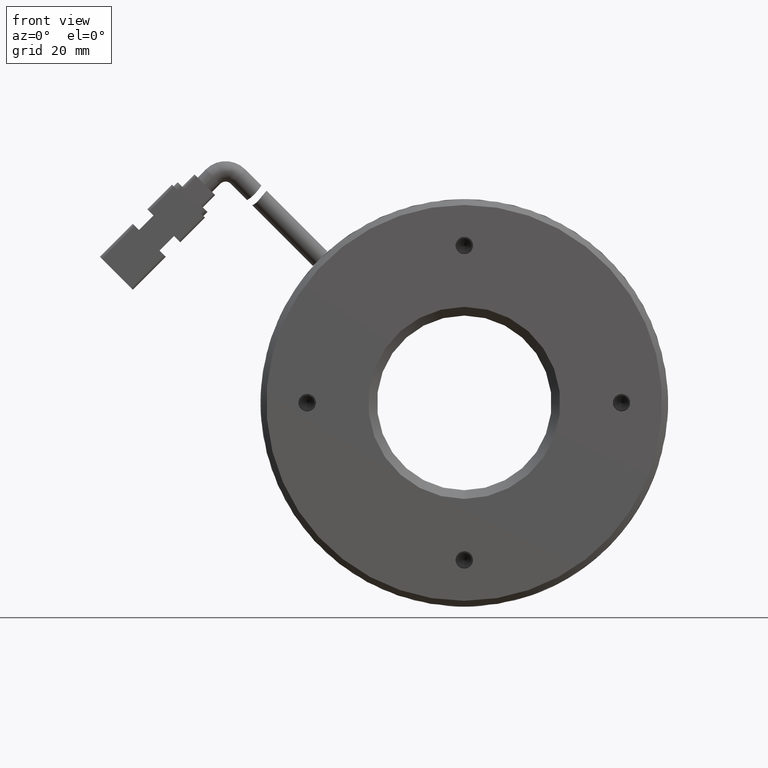
[diagram: clean part render]
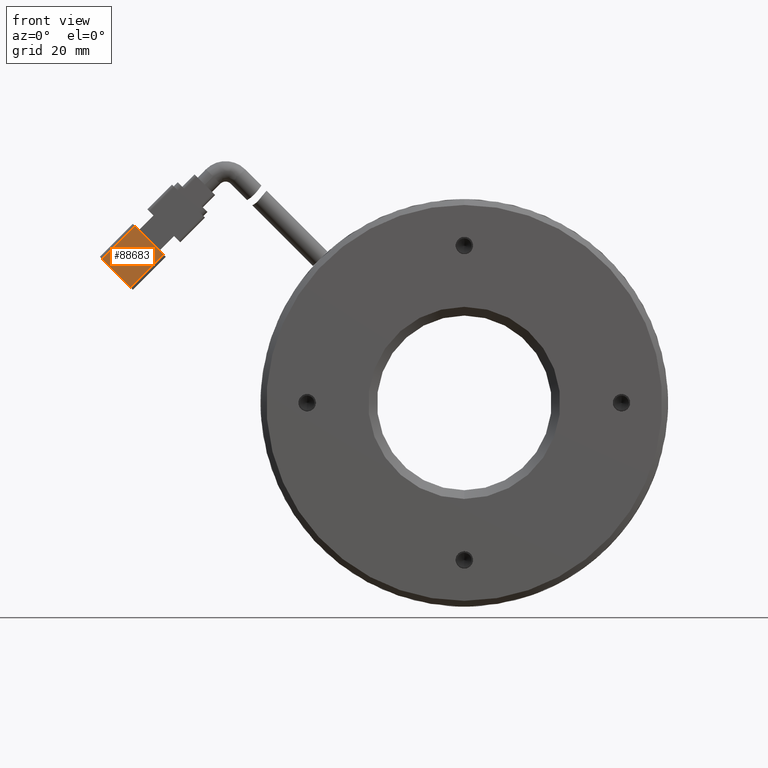
[diagram: same view with one face highlighted and labeled with its STEP entity id]
A machine part, front view. The second image highlights one B-rep face of the part: STEP entity #88683.
In plain terms, the highlighted planar face has unit normal (-0, 1, 0).
Its self-contained STEP definition (entity closure, byte-faithful):
#529 = VERTEX_POINT ( 'NONE', #47752 ) ;
#3541 = LINE ( 'NONE', #22906, #19859 ) ;
#8548 = CARTESIAN_POINT ( 'NONE',  ( -55.11802431370838900, 30.77623868994508500, 25.45584412271573200 ) ) ;
#9478 = DIRECTION ( 'NONE',  ( -1.480036590935464800E-016, 1.000000000000000000, 2.722987424169661900E-017 ) ) ;
#14879 = DIRECTION ( 'NONE',  ( -0.7071067811865486800, -8.539996225830837600E-017, -0.7071067811865464600 ) ) ;
#16403 = CARTESIAN_POINT ( 'NONE',  ( -65.72462603150658800, 30.77623868994508500, 24.74873734152924200 ) ) ;
#16666 = VERTEX_POINT ( 'NONE', #16403 ) ;
#17218 = VECTOR ( 'NONE', #14879, 1000.000000000000000 ) ;
#19859 = VECTOR ( 'NONE', #71864, 1000.000000000000000 ) ;
#21770 = EDGE_CURVE ( 'NONE', #81626, #16666, #83014, .T. ) ;
#22125 = EDGE_CURVE ( 'NONE', #529, #81626, #70797, .T. ) ;
#22906 = CARTESIAN_POINT ( 'NONE',  ( -65.72462603150656000, 30.77623868994508500, 24.74873734152926000 ) ) ;
#23367 = EDGE_CURVE ( 'NONE', #16666, #72130, #3541, .T. ) ;
#28375 = CARTESIAN_POINT ( 'NONE',  ( -60.77487856320074400, 30.77623868994508500, 19.79898987322343400 ) ) ;
#29575 = DIRECTION ( 'NONE',  ( 0.7071067811865464600, 1.239088197126291600E-016, -0.7071067811865486800 ) ) ;
#43924 = ORIENTED_EDGE ( 'NONE', *, *, #23367, .F. ) ;
#47752 = CARTESIAN_POINT ( 'NONE',  ( -55.11802431370839600, 30.77623868994508500, 25.45584412271576700 ) ) ;
#50571 = ORIENTED_EDGE ( 'NONE', *, *, #62442, .F. ) ;
#51410 = CARTESIAN_POINT ( 'NONE',  ( -60.77487856320073000, 30.77623868994508500, 19.79898987322341200 ) ) ;
#52917 = FACE_OUTER_BOUND ( 'NONE', #75111, .T. ) ;
#52953 = DIRECTION ( 'NONE',  ( -0.7071067811865464600, -1.239088197126291600E-016, 0.7071067811865486800 ) ) ;
#56761 = CARTESIAN_POINT ( 'NONE',  ( -60.77487856320076500, 30.77623868994508500, 19.79898987322345500 ) ) ;
#58394 = DIRECTION ( 'NONE',  ( 0.7071067811865486800, 8.539996225830837600E-017, 0.7071067811865464600 ) ) ;
#62442 = EDGE_CURVE ( 'NONE', #72130, #529, #62597, .T. ) ;
#62597 = LINE ( 'NONE', #8548, #76864 ) ;
#64367 = VECTOR ( 'NONE', #52953, 1000.000000000000000 ) ;
#66167 = ORIENTED_EDGE ( 'NONE', *, *, #21770, .F. ) ;
#66431 = AXIS2_PLACEMENT_3D ( 'NONE', #51410, #9478, #58394 ) ;
#70797 = LINE ( 'NONE', #56761, #17218 ) ;
#71864 = DIRECTION ( 'NONE',  ( 0.7071067811865486800, 8.539996225830837600E-017, 0.7071067811865464600 ) ) ;
#72130 = VERTEX_POINT ( 'NONE', #77075 ) ;
#72195 = PLANE ( 'NONE',  #66431 ) ;
#75111 = EDGE_LOOP ( 'NONE', ( #43924, #66167, #86720, #50571 ) ) ;
#76864 = VECTOR ( 'NONE', #29575, 1000.000000000000000 ) ;
#77075 = CARTESIAN_POINT ( 'NONE',  ( -60.06777178201421900, 30.77623868994508500, 30.40559159102157900 ) ) ;
#81626 = VERTEX_POINT ( 'NONE', #28375 ) ;
#83014 = LINE ( 'NONE', #87783, #64367 ) ;
#86720 = ORIENTED_EDGE ( 'NONE', *, *, #22125, .F. ) ;
#87783 = CARTESIAN_POINT ( 'NONE',  ( -60.77487856320073000, 30.77623868994508500, 19.79898987322341200 ) ) ;
#88683 = ADVANCED_FACE ( 'NONE', ( #52917 ), #72195, .F. ) ;